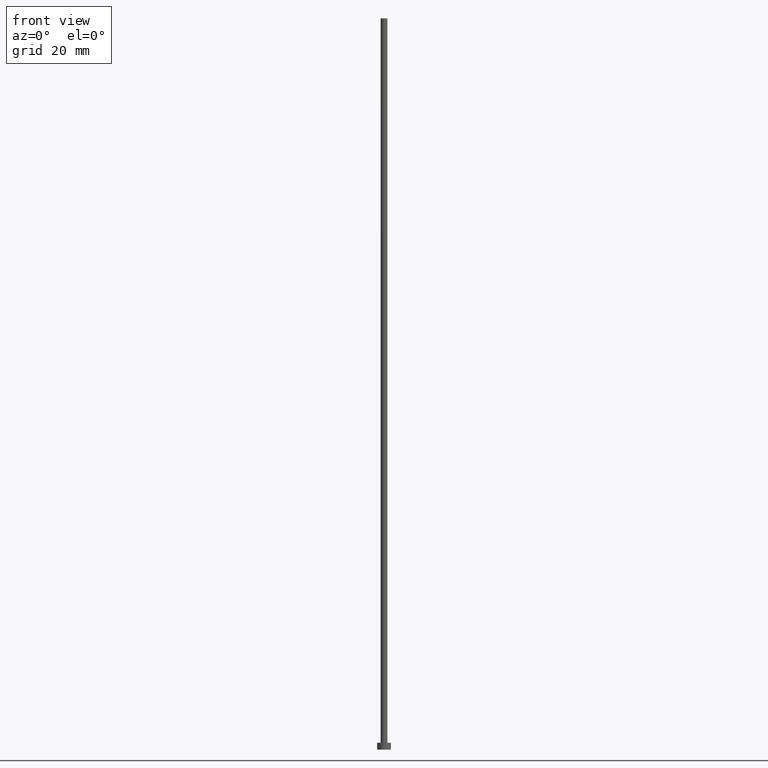
[diagram: clean part render]
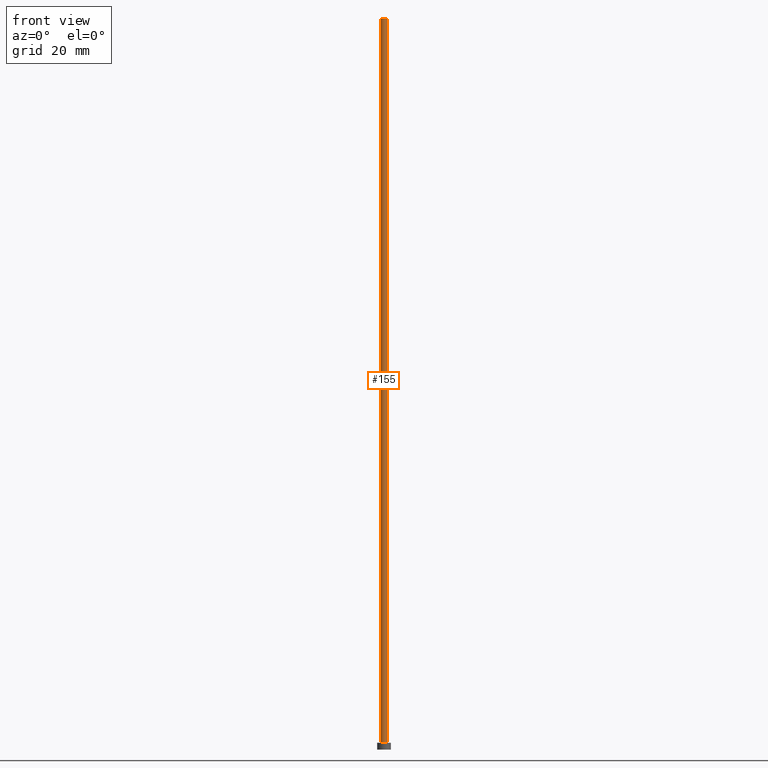
[diagram: same view with one face highlighted and labeled with its STEP entity id]
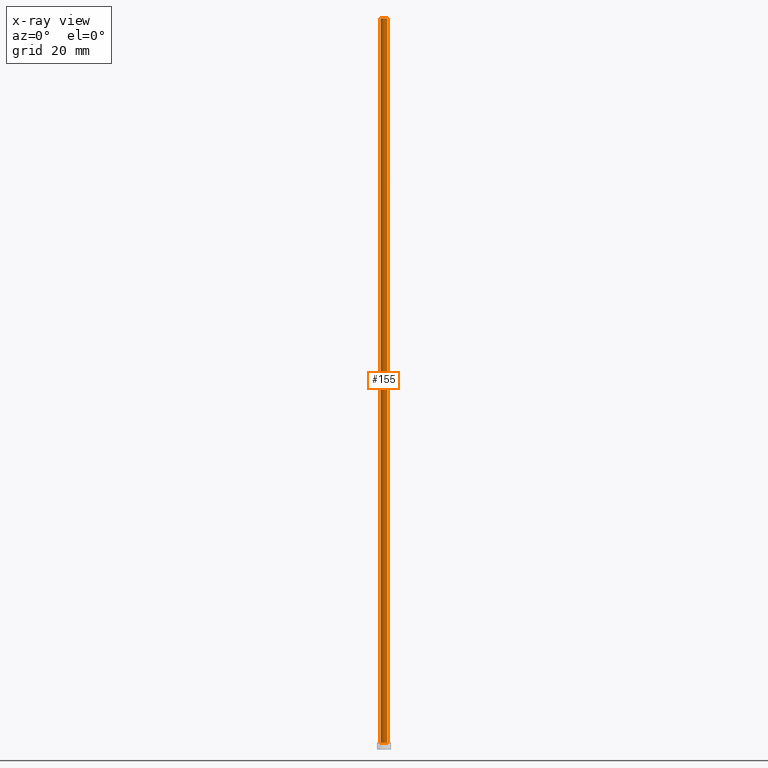
[diagram: x-ray of the same camera — body ghosted, the highlighted face saturated]
A machine part, front view. The second image highlights one B-rep face of the part: STEP entity #155.
The next image is the same camera in x-ray: the body ghosted, the highlighted face saturated — about 0% of this face is hidden behind the body in this view.
In plain terms, the highlighted cylindrical surface (edge-blend (fillet) strip) has radius 0.75 mm, axis along (-0, -0, -1).
Its self-contained STEP definition (entity closure, byte-faithful):
#3 = CARTESIAN_POINT ( 'NONE',  ( 0.000000000000000000, 0.000000000000000000, 1.500000000000000000 ) ) ;
#19 = DIRECTION ( 'NONE',  ( -0.000000000000000000, -0.000000000000000000, -1.000000000000000000 ) ) ;
#34 = ORIENTED_EDGE ( 'NONE', *, *, #208, .T. ) ;
#36 = CARTESIAN_POINT ( 'NONE',  ( 0.000000000000000000, 0.000000000000000000, 160.0000000000000000 ) ) ;
#38 = EDGE_CURVE ( 'NONE', #133, #119, #89, .T. ) ;
#49 = LINE ( 'NONE', #194, #173 ) ;
#50 = CARTESIAN_POINT ( 'NONE',  ( -0.7500000000000001110, 0.000000000000000000, 160.0000000000000000 ) ) ;
#51 = LINE ( 'NONE', #137, #151 ) ;
#70 = CARTESIAN_POINT ( 'NONE',  ( 0.000000000000000000, 0.000000000000000000, 160.0000000000000000 ) ) ;
#72 = ORIENTED_EDGE ( 'NONE', *, *, #38, .F. ) ;
#76 = DIRECTION ( 'NONE',  ( 1.000000000000000000, 0.000000000000000000, 0.000000000000000000 ) ) ;
#89 = CIRCLE ( 'NONE', #209, 0.7500000000000001110 ) ;
#91 = CIRCLE ( 'NONE', #255, 0.7500000000000001110 ) ;
#96 = DIRECTION ( 'NONE',  ( 0.000000000000000000, 0.000000000000000000, 1.000000000000000000 ) ) ;
#102 = CARTESIAN_POINT ( 'NONE',  ( -0.7500000000000001110, 0.000000000000000000, 1.500000000000000000 ) ) ;
#107 = DIRECTION ( 'NONE',  ( -0.000000000000000000, -0.000000000000000000, -1.000000000000000000 ) ) ;
#119 = VERTEX_POINT ( 'NONE', #211 ) ;
#131 = DIRECTION ( 'NONE',  ( -1.000000000000000000, 0.000000000000000000, 0.000000000000000000 ) ) ;
#133 = VERTEX_POINT ( 'NONE', #50 ) ;
#137 = CARTESIAN_POINT ( 'NONE',  ( 0.7500000000000001110, 9.184850993605150903E-17, 160.0000000000000000 ) ) ;
#147 = FACE_OUTER_BOUND ( 'NONE', #154, .T. ) ;
#151 = VECTOR ( 'NONE', #19, 1000.000000000000000 ) ;
#154 = EDGE_LOOP ( 'NONE', ( #216, #72, #34, #233 ) ) ;
#155 = ADVANCED_FACE ( 'NONE', ( #147 ), #176, .T. ) ;
#157 = DIRECTION ( 'NONE',  ( 1.000000000000000000, 0.000000000000000000, 0.000000000000000000 ) ) ;
#169 = EDGE_CURVE ( 'NONE', #119, #228, #51, .T. ) ;
#173 = VECTOR ( 'NONE', #177, 1000.000000000000000 ) ;
#174 = CARTESIAN_POINT ( 'NONE',  ( 0.7500000000000001110, 9.184850993605150903E-17, 1.500000000000000000 ) ) ;
#176 = CYLINDRICAL_SURFACE ( 'NONE', #178, 0.7500000000000001110 ) ;
#177 = DIRECTION ( 'NONE',  ( -0.000000000000000000, -0.000000000000000000, -1.000000000000000000 ) ) ;
#178 = AXIS2_PLACEMENT_3D ( 'NONE', #70, #107, #131 ) ;
#183 = EDGE_CURVE ( 'NONE', #245, #228, #91, .T. ) ;
#194 = CARTESIAN_POINT ( 'NONE',  ( -0.7500000000000001110, 0.000000000000000000, 160.0000000000000000 ) ) ;
#200 = DIRECTION ( 'NONE',  ( 0.000000000000000000, 0.000000000000000000, 1.000000000000000000 ) ) ;
#208 = EDGE_CURVE ( 'NONE', #133, #245, #49, .T. ) ;
#209 = AXIS2_PLACEMENT_3D ( 'NONE', #36, #96, #157 ) ;
#211 = CARTESIAN_POINT ( 'NONE',  ( 0.7500000000000001110, 9.184850993605150903E-17, 160.0000000000000000 ) ) ;
#216 = ORIENTED_EDGE ( 'NONE', *, *, #169, .F. ) ;
#228 = VERTEX_POINT ( 'NONE', #174 ) ;
#233 = ORIENTED_EDGE ( 'NONE', *, *, #183, .T. ) ;
#245 = VERTEX_POINT ( 'NONE', #102 ) ;
#255 = AXIS2_PLACEMENT_3D ( 'NONE', #3, #200, #76 ) ;